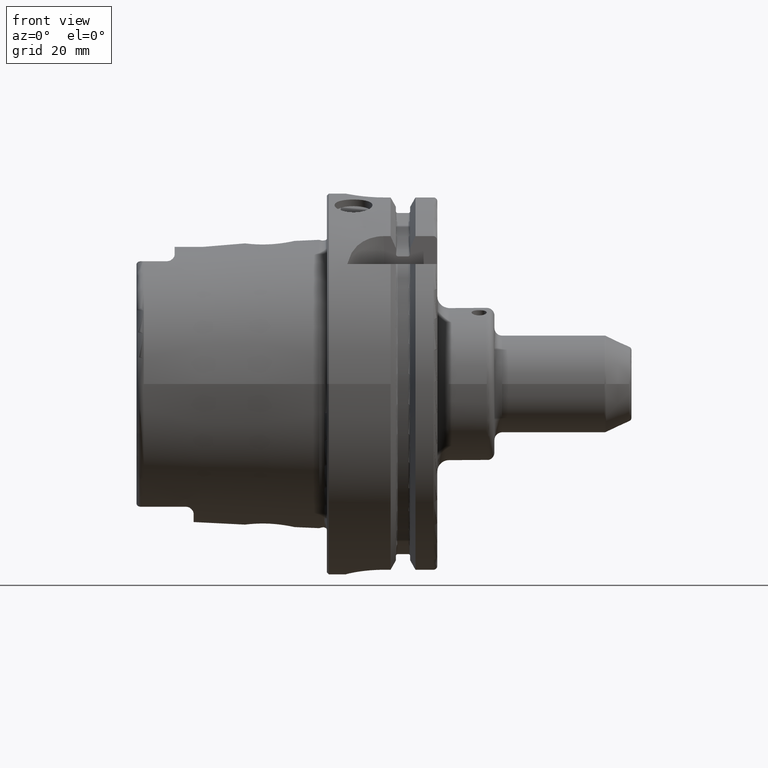
[diagram: clean part render]
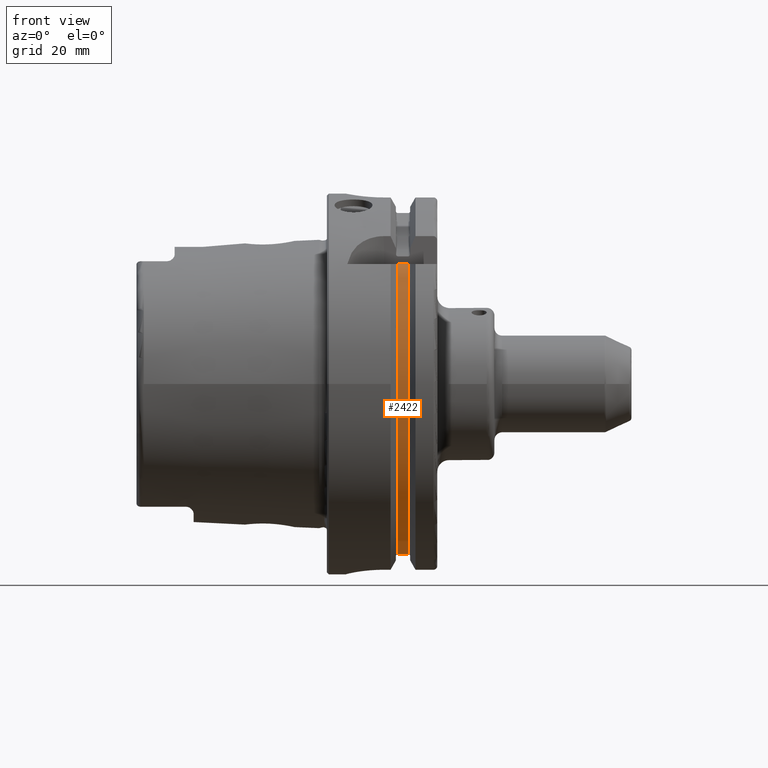
[diagram: same view with one face highlighted and labeled with its STEP entity id]
A machine part, front view. The second image highlights one B-rep face of the part: STEP entity #2422.
In plain terms, the highlighted cylindrical surface (partial cylindrical patch) has radius 46 mm, axis along (1, 0, 0).
Its self-contained STEP definition (entity closure, byte-faithful):
#175=CYLINDRICAL_SURFACE('',#2731,46.);
#242=LINE('',#4872,#361);
#264=LINE('',#5119,#383);
#361=VECTOR('',#3092,10.);
#383=VECTOR('',#3170,10.);
#594=FACE_OUTER_BOUND('',#748,.T.);
#748=EDGE_LOOP('',(#2225,#2226,#2227,#2228));
#898=CIRCLE('',#2730,46.);
#899=CIRCLE('',#2732,46.);
#1061=VERTEX_POINT('',#4860);
#1062=VERTEX_POINT('',#4871);
#1102=VERTEX_POINT('',#5107);
#1103=VERTEX_POINT('',#5118);
#1357=EDGE_CURVE('',#1062,#1061,#242,.T.);
#1413=EDGE_CURVE('',#1103,#1102,#264,.T.);
#1508=EDGE_CURVE('',#1061,#1103,#898,.T.);
#1509=EDGE_CURVE('',#1062,#1102,#899,.T.);
#2225=ORIENTED_EDGE('',*,*,#1357,.T.);
#2226=ORIENTED_EDGE('',*,*,#1508,.T.);
#2227=ORIENTED_EDGE('',*,*,#1413,.T.);
#2228=ORIENTED_EDGE('',*,*,#1509,.F.);
#2422=ADVANCED_FACE('',(#594),#175,.T.);
#2730=AXIS2_PLACEMENT_3D('',#5402,#3420,#3421);
#2731=AXIS2_PLACEMENT_3D('',#5403,#3422,#3423);
#2732=AXIS2_PLACEMENT_3D('',#5404,#3424,#3425);
#3092=DIRECTION('',(-1.,0.,0.));
#3170=DIRECTION('',(1.,0.,0.));
#3420=DIRECTION('center_axis',(1.,0.,0.));
#3421=DIRECTION('ref_axis',(0.,0.,-1.));
#3422=DIRECTION('center_axis',(1.,0.,0.));
#3423=DIRECTION('ref_axis',(0.,-0.958952815598936,-0.283565684550992));
#3424=DIRECTION('center_axis',(1.,0.,0.));
#3425=DIRECTION('ref_axis',(0.,0.,-1.));
#4860=CARTESIAN_POINT('',(18.625,-33.5223805837235,31.5));
#4871=CARTESIAN_POINT('',(21.375,-33.5223805837235,31.5));
#4872=CARTESIAN_POINT('',(20.,-33.5223805837235,31.5));
#5107=CARTESIAN_POINT('',(21.375,-11.,-44.6654228682546));
#5118=CARTESIAN_POINT('',(18.625,-11.,-44.6654228682546));
#5119=CARTESIAN_POINT('',(20.,-11.,-44.6654228682546));
#5402=CARTESIAN_POINT('Origin',(18.625,0.,0.));
#5403=CARTESIAN_POINT('Origin',(20.,0.,0.));
#5404=CARTESIAN_POINT('Origin',(21.375,0.,0.));